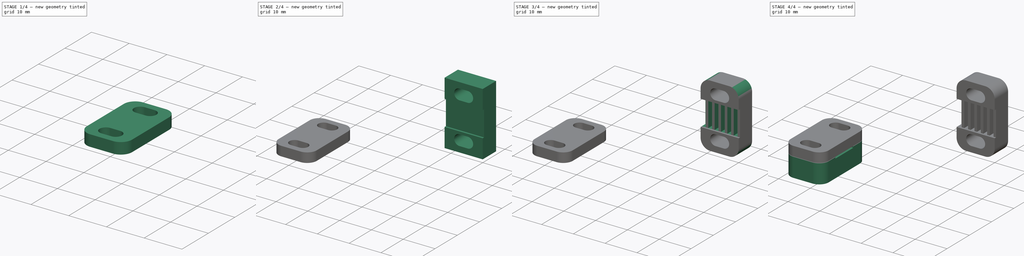
[diagram: build sequence overview — one tinted view per stage of 4, left to right]
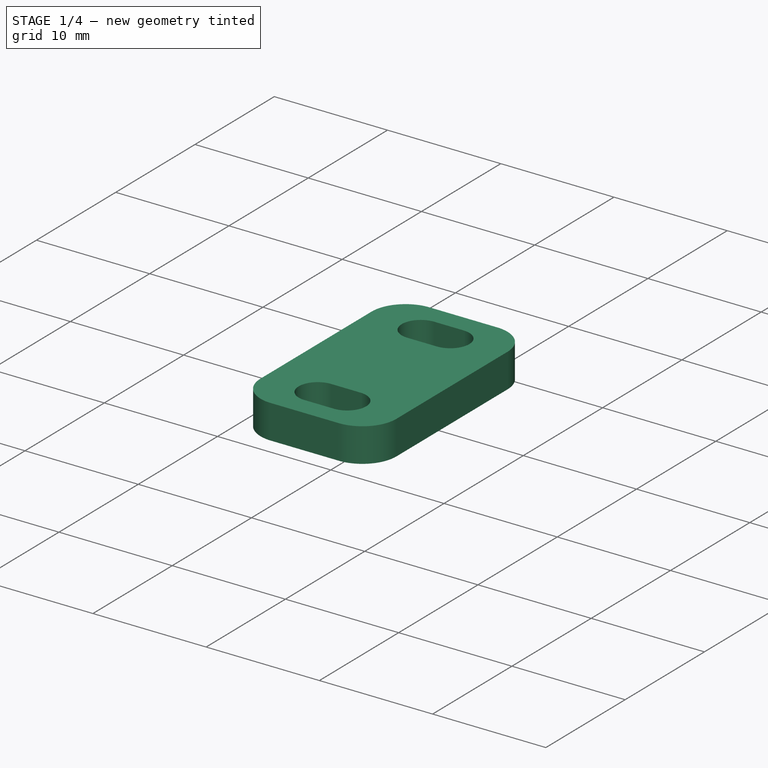
[diagram: stage 1 of 4 — iso view after this stage's code; geometry added in this stage tinted green]
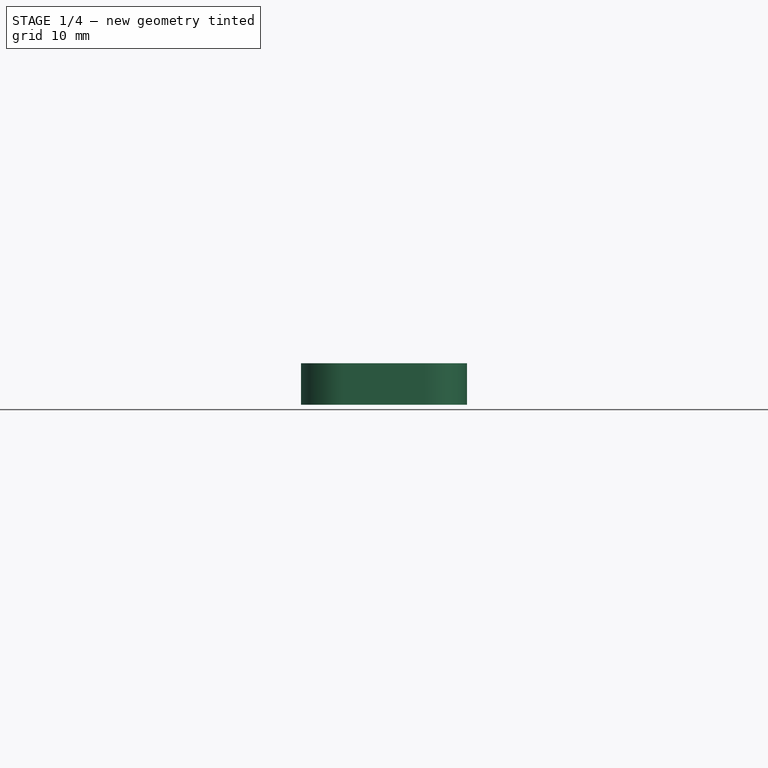
[diagram: stage 1 of 4 — front view after this stage's code; geometry added in this stage tinted green]
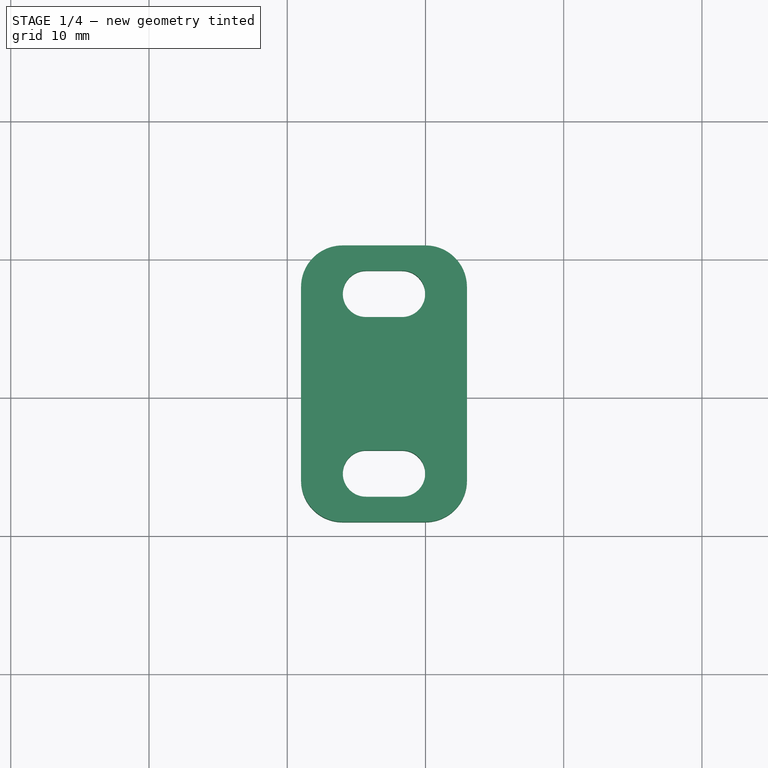
[diagram: stage 1 of 4 — top view after this stage's code; geometry added in this stage tinted green]
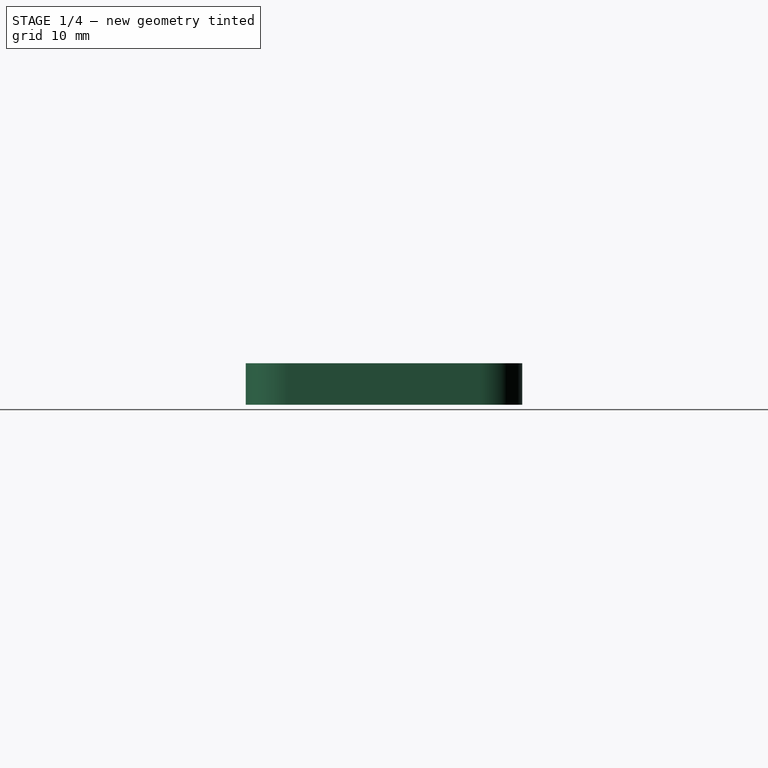
[diagram: stage 1 of 4 — right view after this stage's code; geometry added in this stage tinted green]
FCSTD DOCUMENT  (FreeCAD 0.16R6706 (Git))
Label: new-belt-mount
License: All rights reserved
LicenseURL: http://en.wikipedia.org/wiki/All_rights_reserved
objects: Sketcher::SketchObject×9, PartDesign::Pocket×7, PartDesign::Pad×2, App::DocumentObjectGroup×2, Part::Box×1, PartDesign::Fillet×1
note: 29 computed .brp shape members not serialized (recipe doc carries the construction recipe); baked Part::Feature solids carry a one-line shape summary decoded from their .brp

FEATURE [Sketcher::SketchObject] Sketch014
  Placement = pos=(0,0,6.1) rot=(0,0,1;0rad)
  sketch-geometry (8):
    g0: LineSegment StartX=4 StartY=1 StartZ=0 EndX=10 EndY=1 EndZ=0
    g1: LineSegment StartX=13 StartY=4 StartZ=0 EndX=13 EndY=18 EndZ=0
    g2: LineSegment StartX=10 StartY=21 StartZ=0 EndX=4 EndY=21 EndZ=0
    g3: LineSegment StartX=1 StartY=18 StartZ=0 EndX=1 EndY=4 EndZ=0
    g4: ArcOfCircle CenterX=10 CenterY=18 CenterZ=0 NormalX=0 NormalY=0 NormalZ=1 Radius=3 StartAngle=0 EndAngle=1.5708
    g5: ArcOfCircle CenterX=10 CenterY=4 CenterZ=0 NormalX=0 NormalY=0 NormalZ=1 Radius=3 StartAngle=4.71239 EndAngle=6.28319
    g6: ArcOfCircle CenterX=4 CenterY=4 CenterZ=0 NormalX=0 NormalY=0 NormalZ=1 Radius=3 StartAngle=3.14159 EndAngle=4.71239
    g7: ArcOfCircle CenterX=4 CenterY=18 CenterZ=0 NormalX=0 NormalY=0 NormalZ=1 Radius=3 StartAngle=1.5708 EndAngle=3.14159
  constraints (20):
    c: Horizontal(g0)
    c: Horizontal(g2)
    c: Vertical(g1)
    c: Vertical(g3)
    c: Tangent(g2,g4) = -1.5708
    c: Tangent(g1,g4) = -1.5708
    c: DistanceX(g2) = 10
    c: Tangent(g1,g5) = -1.5708
    c: Tangent(g0,g5) = -1.5708
    c: Tangent(g0,g6) = -1.5708
    c: Tangent(g3,g6) = -1.5708
    c: Tangent(g2,g7) = -1.5708
    c: Tangent(g3,g7) = -1.5708
    c: DistanceX(g2) = 4
    c: Distance(g1,g1) = 14
    c: Equal(g1,g3)
    c: Equal(g2,g0)
    c: DistanceY(g3) = 4
    c: DistanceX(g0) = 4
    c: DistanceY(g0) = 1
FEATURE [PartDesign::Pad] Pad001
  Length = 3
  Length2 = 100
  Placement = pos=(0,0,6.1) rot=(0,0,1;0rad)
  Sketch = -> Sketch014
  Type = 0
FEATURE [App::DocumentObjectGroup] Group  label="prev"
  Group = -> [Box002,Pocket015,Pocket016,Pocket017,Fillet006]
FEATURE [Sketcher::SketchObject] Sketch018
  Placement = pos=(0,0,9.1) rot=(0,0,1;0rad)
  Support = -> Pad001 [Face10]
  sketch-geometry (8):
    g0: ArcOfCircle CenterX=5.7 CenterY=4.5 CenterZ=0 NormalX=0 NormalY=0 NormalZ=1 Radius=1.68 StartAngle=1.5708 EndAngle=4.71239
    g1: ArcOfCircle CenterX=8.3 CenterY=4.5 CenterZ=0 NormalX=0 NormalY=0 NormalZ=1 Radius=1.68 StartAngle=4.71239 EndAngle=7.85398
    g2: LineSegment StartX=5.7 StartY=2.82 StartZ=0 EndX=8.3 EndY=2.82 EndZ=0
    g3: LineSegment StartX=5.7 StartY=6.18 StartZ=0 EndX=8.3 EndY=6.18 EndZ=0
    g4: ArcOfCircle CenterX=5.7 CenterY=17.5 CenterZ=0 NormalX=0 NormalY=0 NormalZ=1 Radius=1.68 StartAngle=1.5708 EndAngle=4.71239
    g5: ArcOfCircle CenterX=8.3 CenterY=17.5 CenterZ=0 NormalX=0 NormalY=0 NormalZ=1 Radius=1.68 StartAngle=4.71239 EndAngle=7.85398
    g6: LineSegment StartX=5.7 StartY=15.82 StartZ=0 EndX=8.3 EndY=15.82 EndZ=0
    g7: LineSegment StartX=5.7 StartY=19.18 StartZ=0 EndX=8.3 EndY=19.18 EndZ=0
  constraints (20):
    c: Tangent(g0,g3) = 1.5708
    c: Tangent(g0,g2) = -1.5708
    c: Tangent(g2,g1) = -1.5708
    c: Tangent(g3,g1) = 1.5708
    c: Horizontal(g2)
    c: Equal(g0,g1)
    c: Tangent(g4,g7) = 1.5708
    c: Tangent(g4,g6) = -1.5708
    c: Tangent(g6,g5) = -1.5708
    c: Tangent(g7,g5) = 1.5708
    c: Horizontal(g6)
    c: Equal(g4,g5)
    c: Distance(g7) = 2.6
    c: Distance(g5,g5) = 3.36
    c: Equal(g7,g2)
    c: Distance(g0,g0) = 3.36
    c: Distance(g1,g5) = 13
    c: DistanceX(g4) = 5.7
    c: DistanceX(g0) = 5.7
    c: DistanceY(g0) = 4.5
FEATURE [PartDesign::Pocket] Pocket019
  Length = 5
  Placement = pos=(0,0,6.1) rot=(0,0,1;0rad)
  Sketch = -> Sketch018
  Type = 0
FEATURE [Sketcher::SketchObject] Sketch017
  Placement = pos=(0,0,6.1) rot=(1,0,0;3.14159rad)
  Support = -> Pocket019 [Face4]
  sketch-geometry (24):
    g0: LineSegment StartX=8.6 StartY=-7 StartZ=0 EndX=7.4 EndY=-7 EndZ=0
    g1: LineSegment StartX=7.4 StartY=-7 StartZ=0 EndX=7.4 EndY=-15 EndZ=0
    g2: LineSegment StartX=7.4 StartY=-15 StartZ=0 EndX=8.6 EndY=-15 EndZ=0
    g3: LineSegment StartX=8.6 StartY=-15 StartZ=0 EndX=8.6 EndY=-7 EndZ=0
    g4: LineSegment StartX=6.6 StartY=-7 StartZ=0 EndX=5.4 EndY=-7 EndZ=0
    g5: LineSegment StartX=5.4 StartY=-7 StartZ=0 EndX=5.4 EndY=-15 EndZ=0
    g6: LineSegment StartX=5.4 StartY=-15 StartZ=0 EndX=6.6 EndY=-15 EndZ=0
    g7: LineSegment StartX=6.6 StartY=-15 StartZ=0 EndX=6.6 EndY=-7 EndZ=0
    g8: LineSegment StartX=4.6 StartY=-7 StartZ=0 EndX=3.4 EndY=-7 EndZ=0
    g9: LineSegment StartX=3.4 StartY=-7 StartZ=0 EndX=3.4 EndY=-15 EndZ=0
    g10: LineSegment StartX=3.4 StartY=-15 StartZ=0 EndX=4.6 EndY=-15 EndZ=0
    g11: LineSegment StartX=4.6 StartY=-15 StartZ=0 EndX=4.6 EndY=-7 EndZ=0
    g12: LineSegment StartX=2.6 StartY=-7 StartZ=0 EndX=1.4 EndY=-7 EndZ=0
    g13: LineSegment StartX=1.4 StartY=-7 StartZ=0 EndX=1.4 EndY=-15 EndZ=0
    g14: LineSegment StartX=1.4 StartY=-15 StartZ=0 EndX=2.6 EndY=-15 EndZ=0
    g15: LineSegment StartX=2.6 StartY=-15 StartZ=0 EndX=2.6 EndY=-7 EndZ=0
    g16: LineSegment StartX=9.4 StartY=-7 StartZ=0 EndX=10.6 EndY=-7 EndZ=0
    g17: LineSegment StartX=10.6 StartY=-7 StartZ=0 EndX=10.6 EndY=-15 EndZ=0
    g18: LineSegment StartX=10.6 StartY=-15 StartZ=0 EndX=9.4 EndY=-15 EndZ=0
    g19: LineSegment StartX=9.4 StartY=-15 StartZ=0 EndX=9.4 EndY=-7 EndZ=0
    g20: LineSegment StartX=11.4 StartY=-7 StartZ=0 EndX=12.6 EndY=-7 EndZ=0
    g21: LineSegment StartX=12.6 StartY=-7 StartZ=0 EndX=12.6 EndY=-15 EndZ=0
    g22: LineSegment StartX=12.6 StartY=-15 StartZ=0 EndX=11.4 EndY=-15 EndZ=0
    g23: LineSegment StartX=11.4 StartY=-15 StartZ=0 EndX=11.4 EndY=-7 EndZ=0
  constraints (72):
    c: Coincident(g0,g1)
    c: Coincident(g1,g2)
    c: Coincident(g2,g3)
    c: Coincident(g3,g0)
    c: Horizontal(g0)
    c: Horizontal(g2)
    c: Vertical(g1)
    c: Vertical(g3)
    c: Coincident(g4,g5)
    c: Coincident(g5,g6)
    c: Coincident(g6,g7)
    c: Coincident(g7,g4)
    c: Horizontal(g4)
    c: Horizontal(g6)
    c: Vertical(g5)
    c: Vertical(g7)
    c: Coincident(g8,g9)
    c: Coincident(g9,g10)
    c: Coincident(g10,g11)
    c: Coincident(g11,g8)
    c: Horizontal(g8)
    c: Horizontal(g10)
    c: Vertical(g9)
    c: Vertical(g11)
    c: Distance(g0,g4) = 0.8
    c: Distance(g4,g8) = 0.8
    c: Coincident(g12,g13)
    c: Coincident(g13,g14)
    c: Coincident(g14,g15)
    c: Coincident(g15,g12)
    c: Horizontal(g12)
    c: Horizontal(g14)
    c: Vertical(g13)
    c: Vertical(g15)
    c: Distance(g8,g12) = 0.8
    c: DistanceX(g-2,g13) = 1.4
    c: Coincident(g16,g17)
    c: Coincident(g17,g18)
    c: Coincident(g18,g19)
    c: Coincident(g19,g16)
    c: Horizontal(g16)
    c: Horizontal(g18)
    c: Vertical(g17)
    c: Vertical(g19)
    c: Distance(g0,g16) = 0.8
    c: Coincident(g20,g21)
    c: Coincident(g21,g22)
    c: Coincident(g22,g23)
    c: Coincident(g23,g20)
    c: Horizontal(g20)
    c: Horizontal(g22)
    c: Vertical(g21)
    c: Vertical(g23)
    c: Distance(g16,g20) = 0.8
    c: Distance(g21) = 8
    c: DistanceY(g12) = -7
    c: Distance(g14) = 1.2
    c: Equal(g13,g9)
    c: Equal(g9,g5)
    c: Equal(g5,g1)
    c: Equal(g1,g19)
    c: Equal(g19,g23)
    c: Equal(g12,g8)
    c: Equal(g8,g4)
    c: Equal(g4,g0)
    c: Equal(g0,g16)
    c: Equal(g16,g20)
    c: DistanceY(g8) = -7
    c: DistanceY(g4) = -7
    c: DistanceY(g0) = -7
    c: DistanceY(g16) = -7
    c: DistanceY(g20) = -7
FEATURE [PartDesign::Pocket] Pocket020
  Length = 0.8
  Placement = pos=(0,0,6.1) rot=(0,0,1;0rad)
  Sketch = -> Sketch017
  Type = 0
FEATURE [App::DocumentObjectGroup] Group001  label="belt shim"
  Group = -> [Pad001,Pocket019,Pocket020]
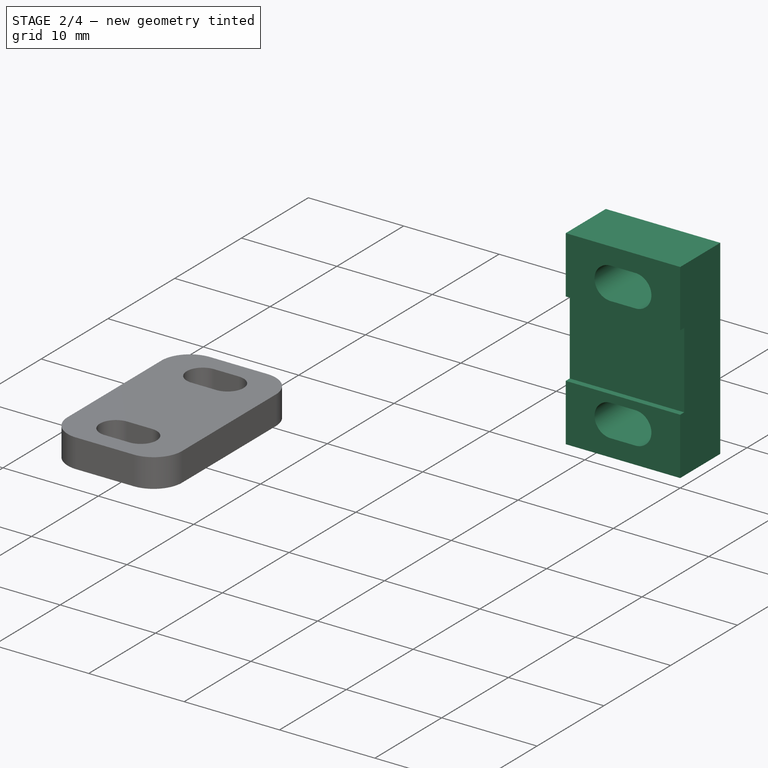
[diagram: stage 2 of 4 — iso view after this stage's code; geometry added in this stage tinted green]
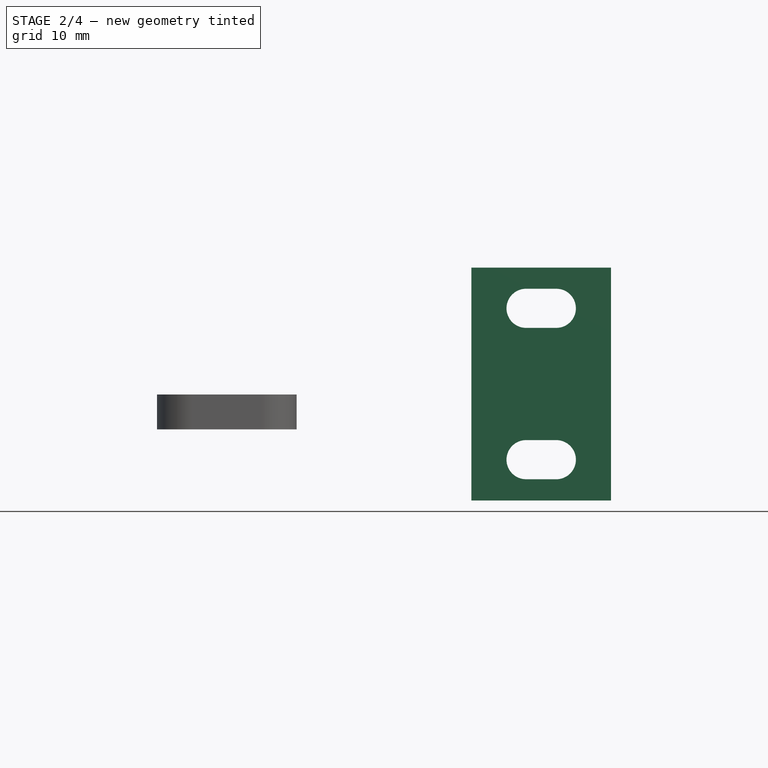
[diagram: stage 2 of 4 — front view after this stage's code; geometry added in this stage tinted green]
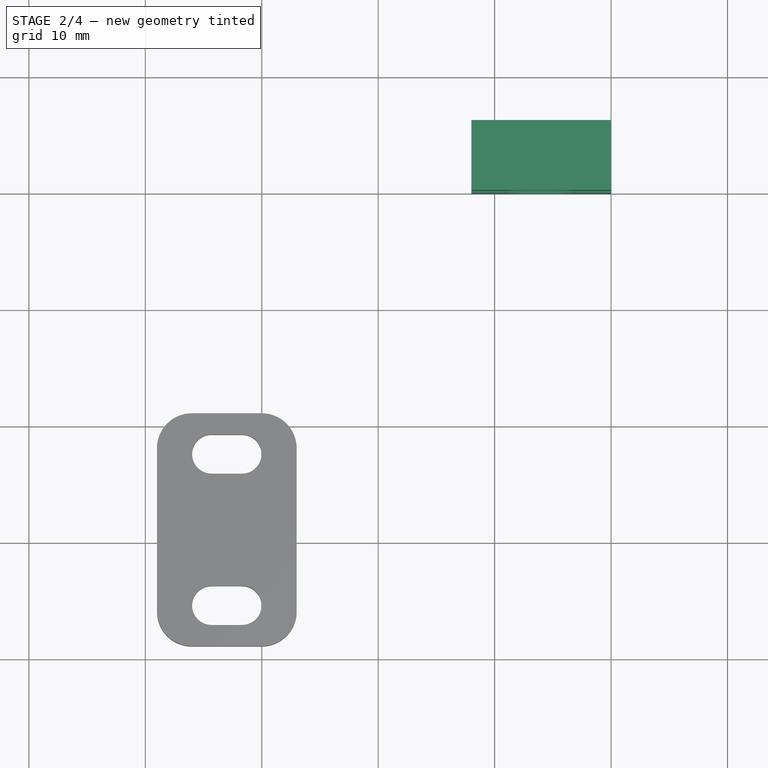
[diagram: stage 2 of 4 — top view after this stage's code; geometry added in this stage tinted green]
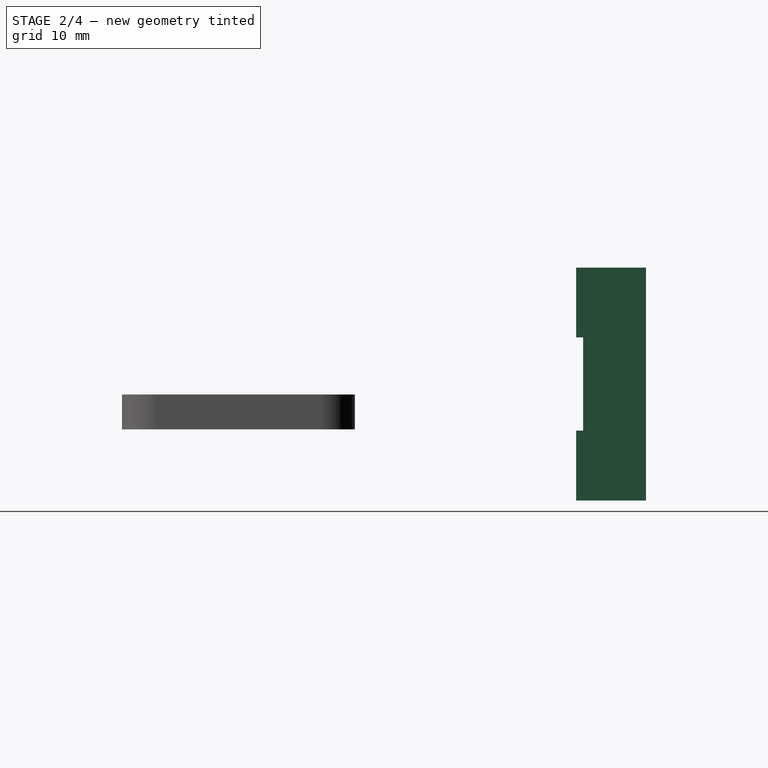
[diagram: stage 2 of 4 — right view after this stage's code; geometry added in this stage tinted green]
FEATURE [Part::Box] Box002  label="block"
  Height = 20
  Length = 12
  Placement = pos=(28,40,0) rot=(0,0,1;0rad)
  Width = 6
FEATURE [Sketcher::SketchObject] Sketch012
  Placement = pos=(28,46,0) rot=(0,0.707107,0.707107;3.14159rad)
  Support = -> Box002 [Face4]
  sketch-geometry (8):
    g0: ArcOfCircle CenterX=-7.3 CenterY=16.5 CenterZ=0 NormalX=0 NormalY=0 NormalZ=1 Radius=1.68 StartAngle=1.5708 EndAngle=4.71239
    g1: ArcOfCircle CenterX=-4.7 CenterY=16.5 CenterZ=0 NormalX=0 NormalY=0 NormalZ=1 Radius=1.68 StartAngle=4.71239 EndAngle=7.85398
    g2: LineSegment StartX=-7.3 StartY=14.82 StartZ=0 EndX=-4.7 EndY=14.82 EndZ=0
    g3: LineSegment StartX=-7.3 StartY=18.18 StartZ=0 EndX=-4.7 EndY=18.18 EndZ=0
    g4: ArcOfCircle CenterX=-7.3 CenterY=3.5 CenterZ=0 NormalX=0 NormalY=0 NormalZ=1 Radius=1.68 StartAngle=1.5708 EndAngle=4.71239
    g5: ArcOfCircle CenterX=-4.7 CenterY=3.5 CenterZ=0 NormalX=0 NormalY=0 NormalZ=1 Radius=1.68 StartAngle=4.71239 EndAngle=7.85398
    g6: LineSegment StartX=-7.3 StartY=1.82 StartZ=0 EndX=-4.7 EndY=1.82 EndZ=0
    g7: LineSegment StartX=-7.3 StartY=5.18 StartZ=0 EndX=-4.7 EndY=5.18 EndZ=0
  constraints (20):
    c: Tangent(g0,g3) = 1.5708
    c: Tangent(g0,g2) = -1.5708
    c: Tangent(g2,g1) = -1.5708
    c: Tangent(g3,g1) = 1.5708
    c: Horizontal(g2)
    c: Equal(g0,g1)
    c: Tangent(g4,g7) = 1.5708
    c: Tangent(g4,g6) = -1.5708
    c: Tangent(g6,g5) = -1.5708
    c: Tangent(g7,g5) = 1.5708
    c: Horizontal(g6)
    c: Equal(g4,g5)
    c: Distance(g7) = 2.6
    c: Distance(g5,g5) = 3.36
    c: Equal(g7,g2)
    c: Distance(g0,g0) = 3.36
    c: Distance(g1,g5) = 13
    c: DistanceX(g-2,g5) = -4.7
    c: DistanceX(g-2,g1) = -4.7
    c: DistanceY(g-1,g4) = 3.5
FEATURE [PartDesign::Pocket] Pocket015
  Length = 5
  Placement = pos=(28,40,0) rot=(0,0,1;0rad)
  Sketch = -> Sketch012
  Type = 1
FEATURE [Sketcher::SketchObject] Sketch013
  Placement = pos=(28,40,0) rot=(0.57735,-0.57735,-0.57735;2.0944rad)
  Support = -> Pocket015 [Face1]
  sketch-geometry (4):
    g0: LineSegment StartX=-0.6 StartY=14 StartZ=0 EndX=0 EndY=14 EndZ=0
    g1: LineSegment StartX=0 StartY=14 StartZ=0 EndX=0 EndY=6 EndZ=0
    g2: LineSegment StartX=0 StartY=6 StartZ=0 EndX=-0.6 EndY=6 EndZ=0
    g3: LineSegment StartX=-0.6 StartY=6 StartZ=0 EndX=-0.6 EndY=14 EndZ=0
  constraints (12):
    c: Coincident(g0,g1)
    c: Coincident(g1,g2)
    c: Coincident(g2,g3)
    c: Coincident(g3,g0)
    c: Horizontal(g0)
    c: Horizontal(g2)
    c: Vertical(g1)
    c: Vertical(g3)
    c: Distance(g1) = 8
    c: Distance(g2,g1) = 0.6
    c: DistanceX(g-2,g1) = 0
    c: DistanceY(g-1,g2) = 6
FEATURE [PartDesign::Pocket] Pocket016
  Length = 5
  Placement = pos=(28,40,0) rot=(0,0,1;0rad)
  Sketch = -> Sketch013
  Type = 1
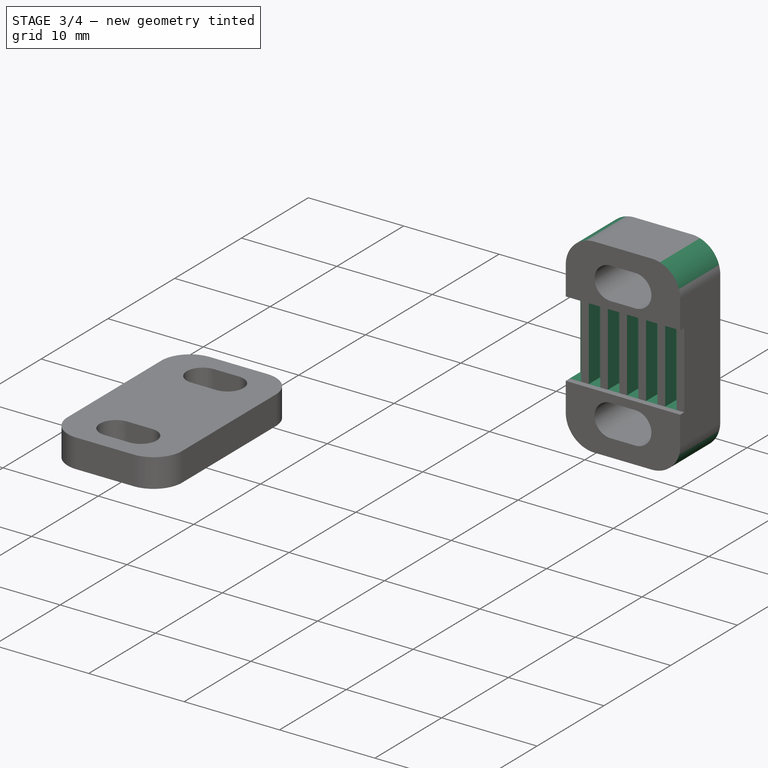
[diagram: stage 3 of 4 — iso view after this stage's code; geometry added in this stage tinted green]
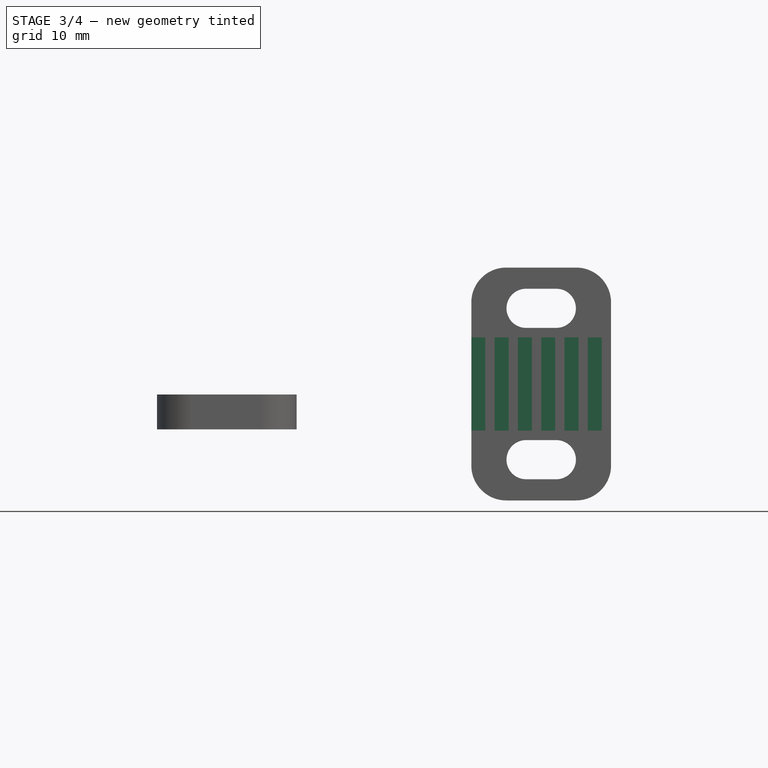
[diagram: stage 3 of 4 — front view after this stage's code; geometry added in this stage tinted green]
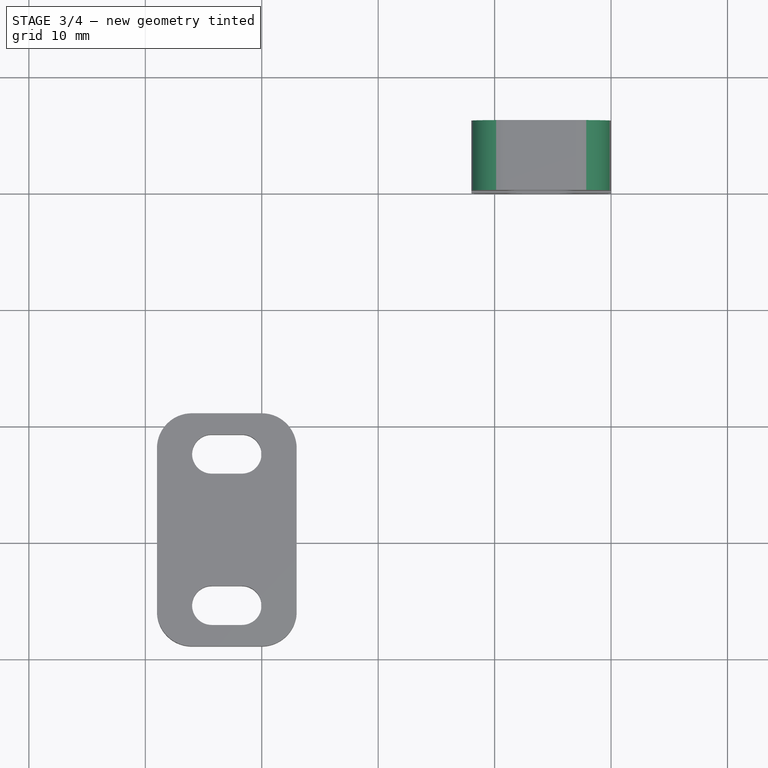
[diagram: stage 3 of 4 — top view after this stage's code; geometry added in this stage tinted green]
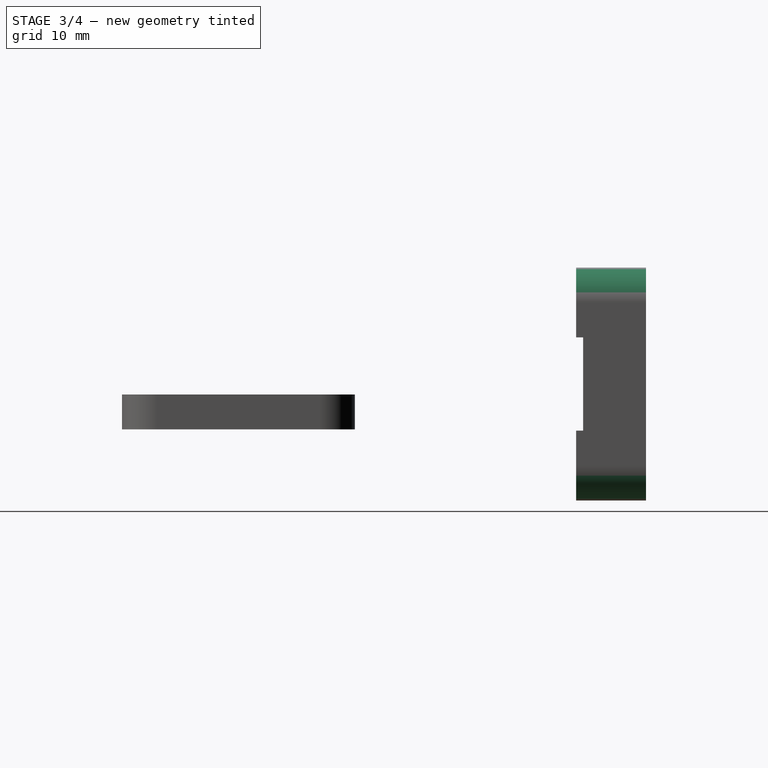
[diagram: stage 3 of 4 — right view after this stage's code; geometry added in this stage tinted green]
FEATURE [Sketcher::SketchObject] Sketch011
  Placement = pos=(28,40.6,0) rot=(1,0,0;1.5708rad)
  Support = -> Pocket016 [Face4]
  sketch-geometry (24):
    g0: LineSegment StartX=7.19999 StartY=14 StartZ=0 EndX=5.99999 EndY=14 EndZ=0
    g1: LineSegment StartX=5.99999 StartY=14 StartZ=0 EndX=5.99999 EndY=6 EndZ=0
    g2: LineSegment StartX=5.99999 StartY=6 StartZ=0 EndX=7.19999 EndY=6 EndZ=0
    g3: LineSegment StartX=7.19999 StartY=6 StartZ=0 EndX=7.19999 EndY=14 EndZ=0
    g4: LineSegment StartX=5.19999 StartY=14 StartZ=0 EndX=3.99999 EndY=14 EndZ=0
    g5: LineSegment StartX=3.99999 StartY=14 StartZ=0 EndX=3.99999 EndY=6 EndZ=0
    g6: LineSegment StartX=3.99999 StartY=6 StartZ=0 EndX=5.19999 EndY=6 EndZ=0
    g7: LineSegment StartX=5.19999 StartY=6 StartZ=0 EndX=5.19999 EndY=14 EndZ=0
    g8: LineSegment StartX=3.19999 StartY=14 StartZ=0 EndX=1.99999 EndY=14 EndZ=0
    g9: LineSegment StartX=1.99999 StartY=14 StartZ=0 EndX=1.99999 EndY=6 EndZ=0
    g10: LineSegment StartX=1.99999 StartY=6 StartZ=0 EndX=3.19999 EndY=6 EndZ=0
    g11: LineSegment StartX=3.19999 StartY=6 StartZ=0 EndX=3.19999 EndY=14 EndZ=0
    g12: LineSegment StartX=1.2 StartY=14.0043 StartZ=0 EndX=0 EndY=14.0043 EndZ=0
    g13: LineSegment StartX=0 StartY=14.0043 StartZ=0 EndX=0 EndY=6.00427 EndZ=0
    g14: LineSegment StartX=0 StartY=6.00427 StartZ=0 EndX=1.2 EndY=6.00427 EndZ=0
    g15: LineSegment StartX=1.2 StartY=6.00427 StartZ=0 EndX=1.2 EndY=14.0043 EndZ=0
    g16: LineSegment StartX=7.99999 StartY=14 StartZ=0 EndX=9.19999 EndY=14 EndZ=0
    g17: LineSegment StartX=9.19999 StartY=14 StartZ=0 EndX=9.19999 EndY=6 EndZ=0
    g18: LineSegment StartX=9.19999 StartY=6 StartZ=0 EndX=7.99999 EndY=6 EndZ=0
    g19: LineSegment StartX=7.99999 StartY=6 StartZ=0 EndX=7.99999 EndY=14 EndZ=0
    g20: LineSegment StartX=9.99999 StartY=14 StartZ=0 EndX=11.2 EndY=14 EndZ=0
    g21: LineSegment StartX=11.2 StartY=14 StartZ=0 EndX=11.2 EndY=6 EndZ=0
    g22: LineSegment StartX=11.2 StartY=6 StartZ=0 EndX=9.99999 EndY=6 EndZ=0
    g23: LineSegment StartX=9.99999 StartY=6 StartZ=0 EndX=9.99999 EndY=14 EndZ=0
  constraints (72):
    c: Coincident(g0,g1)
    c: Coincident(g1,g2)
    c: Coincident(g2,g3)
    c: Coincident(g3,g0)
    c: Horizontal(g0)
    c: Horizontal(g2)
    c: Vertical(g1)
    c: Vertical(g3)
    c: Coincident(g4,g5)
    c: Coincident(g5,g6)
    c: Coincident(g6,g7)
    c: Coincident(g7,g4)
    c: Horizontal(g4)
    c: Horizontal(g6)
    c: Vertical(g5)
    c: Vertical(g7)
    c: Coincident(g8,g9)
    c: Coincident(g9,g10)
    c: Coincident(g10,g11)
    c: Coincident(g11,g8)
    c: Horizontal(g8)
    c: Horizontal(g10)
    c: Vertical(g9)
    c: Vertical(g11)
    c: Distance(g3) = 8
    c: DistanceY(g-1,g2) = 6
    c: Equal(g1,g5)
    c: Equal(g5,g9)
    c: Distance(g1,g2) = 1.2
    c: Equal(g2,g6)
    c: Distance(g0,g4) = 0.8
    c: Distance(g4,g8) = 0.8
    c: Equal(g2,g6)
    c: Equal(g6,g10)
    c: Coincident(g12,g13)
    c: Coincident(g13,g14)
    c: Coincident(g14,g15)
    c: Coincident(g15,g12)
    c: Horizontal(g12)
    c: Horizontal(g14)
    c: Vertical(g13)
    c: Vertical(g15)
    c: Equal(g10,g14)
    c: Distance(g8,g12) = 0.8
    c: Equal(g3,g15)
    c: DistanceX(g-2,g13) = 0
    c: Coincident(g16,g17)
    c: Coincident(g17,g18)
    c: Coincident(g18,g19)
    c: Coincident(g19,g16)
    c: Horizontal(g16)
    c: Horizontal(g18)
    c: Vertical(g17)
    c: Vertical(g19)
    c: Equal(g3,g17)
    c: DistanceY(g-1,g17) = 6
    c: Distance(g0,g16) = 0.8
    c: Equal(g2,g18)
    c: Coincident(g20,g21)
    c: Coincident(g21,g22)
    c: Coincident(g22,g23)
    c: Coincident(g23,g20)
    c: Horizontal(g20)
    c: Horizontal(g22)
    c: Vertical(g21)
    c: Vertical(g23)
    c: DistanceY(g-1,g21) = 6
    c: DistanceY(g-1,g6) = 6
    c: DistanceY(g-1,g9) = 6
    c: Equal(g22,g18)
    c: Equal(g23,g17)
    c: Distance(g17,g22) = 0.8
FEATURE [PartDesign::Pocket] Pocket017
  Length = 1.6
  Placement = pos=(28,40,0) rot=(0,0,1;0rad)
  Sketch = -> Sketch011
  Type = 0
FEATURE [PartDesign::Fillet] Fillet006
  Base = -> Pocket017 [Edge10,Edge12,Edge63,Edge74]
  Placement = pos=(28,40,0) rot=(0,0,1;0rad)
  Radius = 3
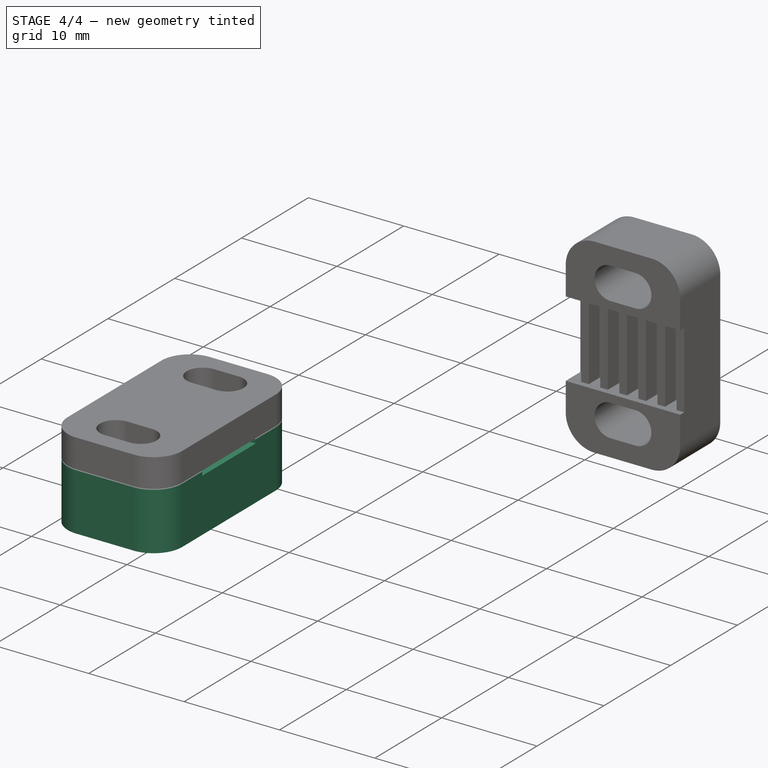
[diagram: stage 4 of 4 — iso view after this stage's code; geometry added in this stage tinted green]
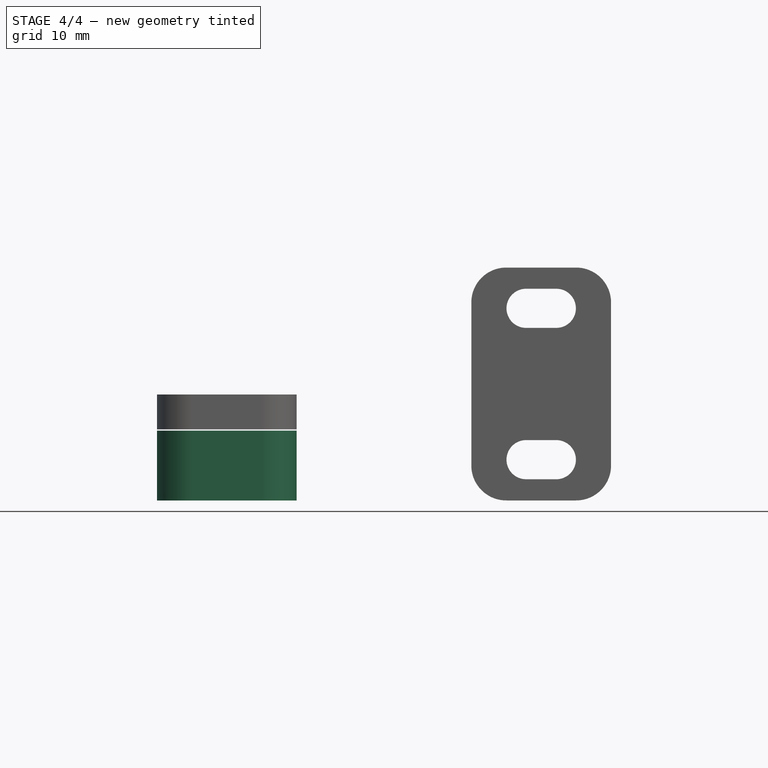
[diagram: stage 4 of 4 — front view after this stage's code; geometry added in this stage tinted green]
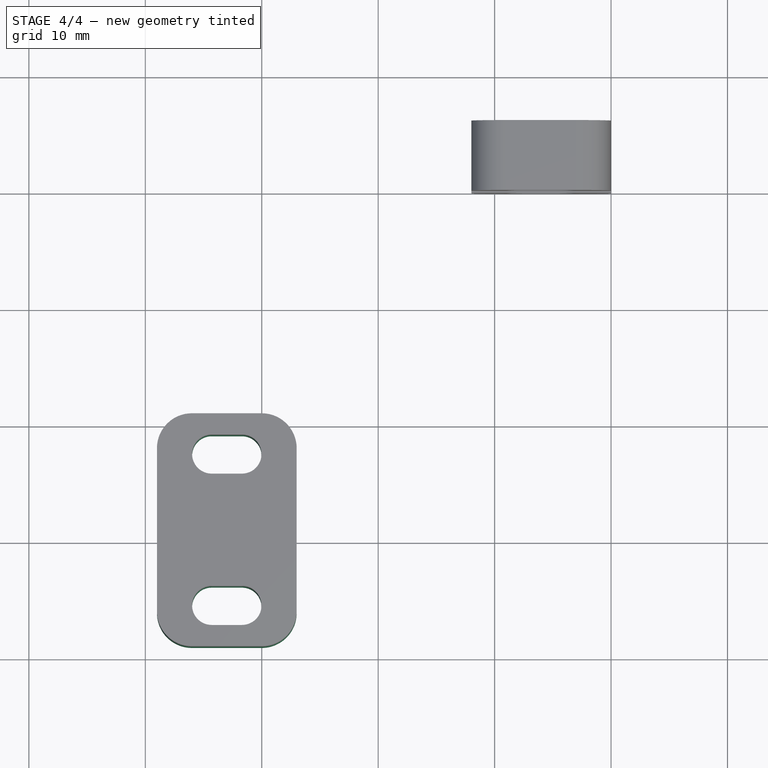
[diagram: stage 4 of 4 — top view after this stage's code; geometry added in this stage tinted green]
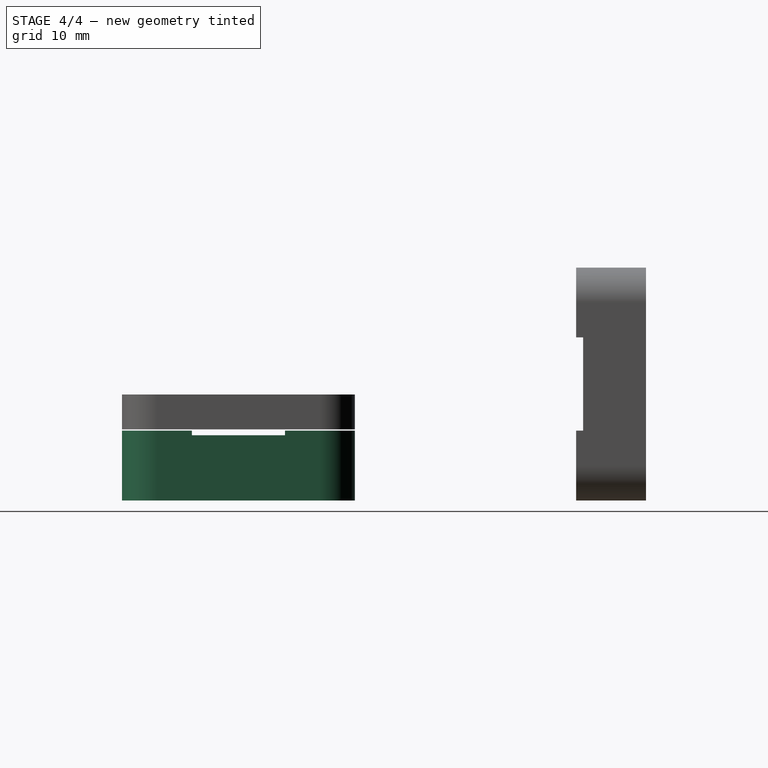
[diagram: stage 4 of 4 — right view after this stage's code; geometry added in this stage tinted green]
FEATURE [Sketcher::SketchObject] Sketch
  sketch-geometry (8):
    g0: LineSegment StartX=4 StartY=1 StartZ=0 EndX=10 EndY=1 EndZ=0
    g1: LineSegment StartX=13 StartY=4 StartZ=0 EndX=13 EndY=18 EndZ=0
    g2: LineSegment StartX=10 StartY=21 StartZ=0 EndX=4 EndY=21 EndZ=0
    g3: LineSegment StartX=1 StartY=18 StartZ=0 EndX=1 EndY=4 EndZ=0
    g4: ArcOfCircle CenterX=10 CenterY=18 CenterZ=0 NormalX=0 NormalY=0 NormalZ=1 Radius=3 StartAngle=0 EndAngle=1.5708
    g5: ArcOfCircle CenterX=10 CenterY=4 CenterZ=0 NormalX=0 NormalY=0 NormalZ=1 Radius=3 StartAngle=4.71239 EndAngle=6.28319
    g6: ArcOfCircle CenterX=4 CenterY=4 CenterZ=0 NormalX=0 NormalY=0 NormalZ=1 Radius=3 StartAngle=3.14159 EndAngle=4.71239
    g7: ArcOfCircle CenterX=4 CenterY=18 CenterZ=0 NormalX=0 NormalY=0 NormalZ=1 Radius=3 StartAngle=1.5708 EndAngle=3.14159
  constraints (20):
    c: Horizontal(g0)
    c: Horizontal(g2)
    c: Vertical(g1)
    c: Vertical(g3)
    c: Tangent(g2,g4) = -1.5708
    c: Tangent(g1,g4) = -1.5708
    c: DistanceX(g2) = 10
    c: Tangent(g1,g5) = -1.5708
    c: Tangent(g0,g5) = -1.5708
    c: Tangent(g0,g6) = -1.5708
    c: Tangent(g3,g6) = -1.5708
    c: Tangent(g2,g7) = -1.5708
    c: Tangent(g3,g7) = -1.5708
    c: DistanceX(g2) = 4
    c: Distance(g1,g1) = 14
    c: Equal(g1,g3)
    c: Equal(g2,g0)
    c: DistanceY(g3) = 4
    c: DistanceX(g0) = 4
    c: DistanceY(g0) = 1
FEATURE [PartDesign::Pad] Pad
  Length = 6
  Length2 = 100
  Sketch = -> Sketch
  Type = 0
FEATURE [Sketcher::SketchObject] Sketch015
  Placement = pos=(13,0,0) rot=(0.57735,0.57735,0.57735;2.0944rad)
  Support = -> Pad [Face3]
  sketch-geometry (4):
    g0: LineSegment StartX=7 StartY=6.1 StartZ=0 EndX=15 EndY=6.1 EndZ=0
    g1: LineSegment StartX=15 StartY=6.1 StartZ=0 EndX=15 EndY=5.6 EndZ=0
    g2: LineSegment StartX=15 StartY=5.6 StartZ=0 EndX=7 EndY=5.6 EndZ=0
    g3: LineSegment StartX=7 StartY=5.6 StartZ=0 EndX=7 EndY=6.1 EndZ=0
  constraints (12):
    c: Coincident(g0,g1)
    c: Coincident(g1,g2)
    c: Coincident(g2,g3)
    c: Coincident(g3,g0)
    c: Horizontal(g0)
    c: Horizontal(g2)
    c: Vertical(g1)
    c: Vertical(g3)
    c: DistanceX(g0) = 7
    c: DistanceY(g2) = 5.6
    c: Distance(g2) = 8
    c: DistanceY(g0) = 6.1
FEATURE [PartDesign::Pocket] Pocket
  Length = 5
  Sketch = -> Sketch015
  Type = 1
FEATURE [Sketcher::SketchObject] Sketch016
  Placement = pos=(0,0,0) rot=(1,0,0;3.14159rad)
  Support = -> Pocket [Face4]
  sketch-geometry (8):
    g0: ArcOfCircle CenterX=5.7 CenterY=-17.5 CenterZ=0 NormalX=0 NormalY=0 NormalZ=1 Radius=1.68 StartAngle=1.5708 EndAngle=4.71239
    g1: ArcOfCircle CenterX=8.3 CenterY=-17.5 CenterZ=0 NormalX=0 NormalY=0 NormalZ=1 Radius=1.68 StartAngle=4.71239 EndAngle=7.85398
    g2: LineSegment StartX=5.7 StartY=-19.18 StartZ=0 EndX=8.3 EndY=-19.18 EndZ=0
    g3: LineSegment StartX=5.7 StartY=-15.82 StartZ=0 EndX=8.3 EndY=-15.82 EndZ=0
    g4: ArcOfCircle CenterX=5.7 CenterY=-4.5 CenterZ=0 NormalX=0 NormalY=0 NormalZ=1 Radius=1.68 StartAngle=1.5708 EndAngle=4.71239
    g5: ArcOfCircle CenterX=8.3 CenterY=-4.5 CenterZ=0 NormalX=0 NormalY=0 NormalZ=1 Radius=1.68 StartAngle=4.71239 EndAngle=7.85398
    g6: LineSegment StartX=5.7 StartY=-6.18 StartZ=0 EndX=8.3 EndY=-6.18 EndZ=0
    g7: LineSegment StartX=5.7 StartY=-2.82 StartZ=0 EndX=8.3 EndY=-2.82 EndZ=0
  constraints (20):
    c: Tangent(g0,g3) = 1.5708
    c: Tangent(g0,g2) = -1.5708
    c: Tangent(g2,g1) = -1.5708
    c: Tangent(g3,g1) = 1.5708
    c: Horizontal(g2)
    c: Equal(g0,g1)
    c: Tangent(g4,g7) = 1.5708
    c: Tangent(g4,g6) = -1.5708
    c: Tangent(g6,g5) = -1.5708
    c: Tangent(g7,g5) = 1.5708
    c: Horizontal(g6)
    c: Equal(g4,g5)
    c: Distance(g7) = 2.6
    c: Distance(g5,g5) = 3.36
    c: Equal(g7,g2)
    c: Distance(g0,g0) = 3.36
    c: Distance(g1,g5) = 13
    c: DistanceY(g-1,g4) = -4.5
    c: DistanceX(g4) = 5.7
    c: DistanceX(g0) = 5.7
FEATURE [PartDesign::Pocket] Pocket018
  Length = 5
  Sketch = -> Sketch016
  Type = 1
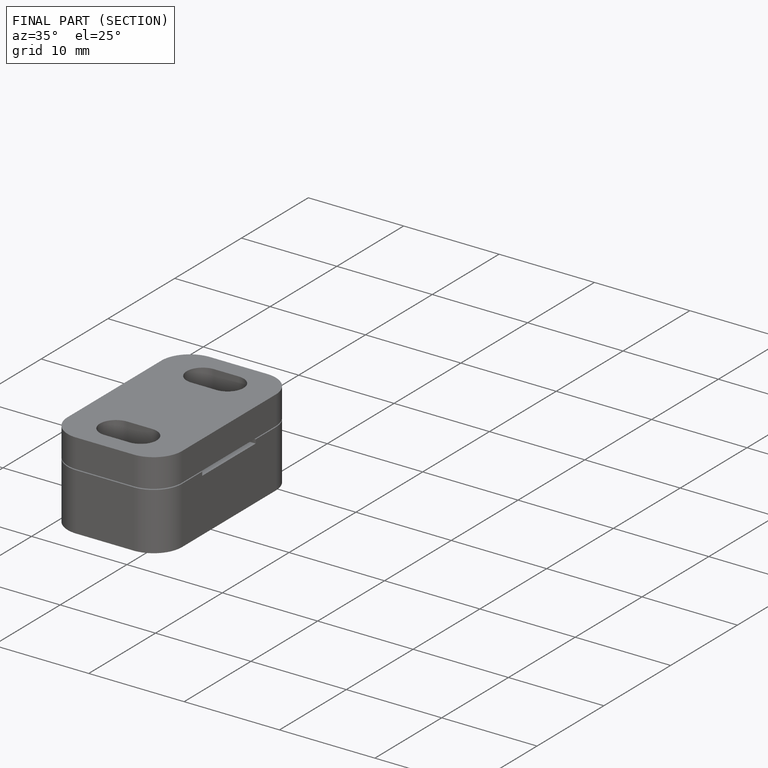
[diagram: finished part — half-section view (interior)]
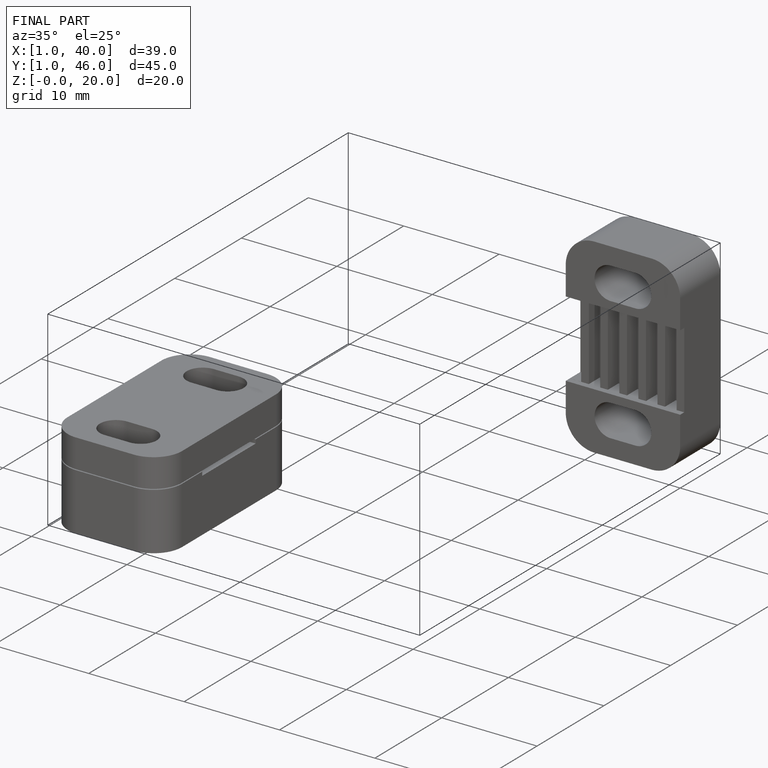
[diagram: finished part — iso view with bounding-box wireframe]
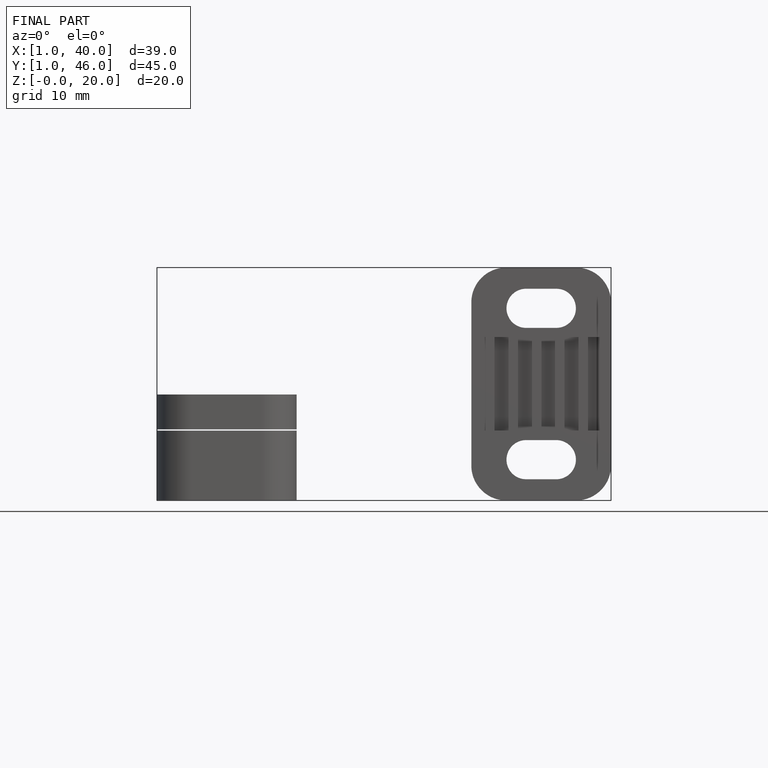
[diagram: finished part — front view with bounding-box wireframe]
